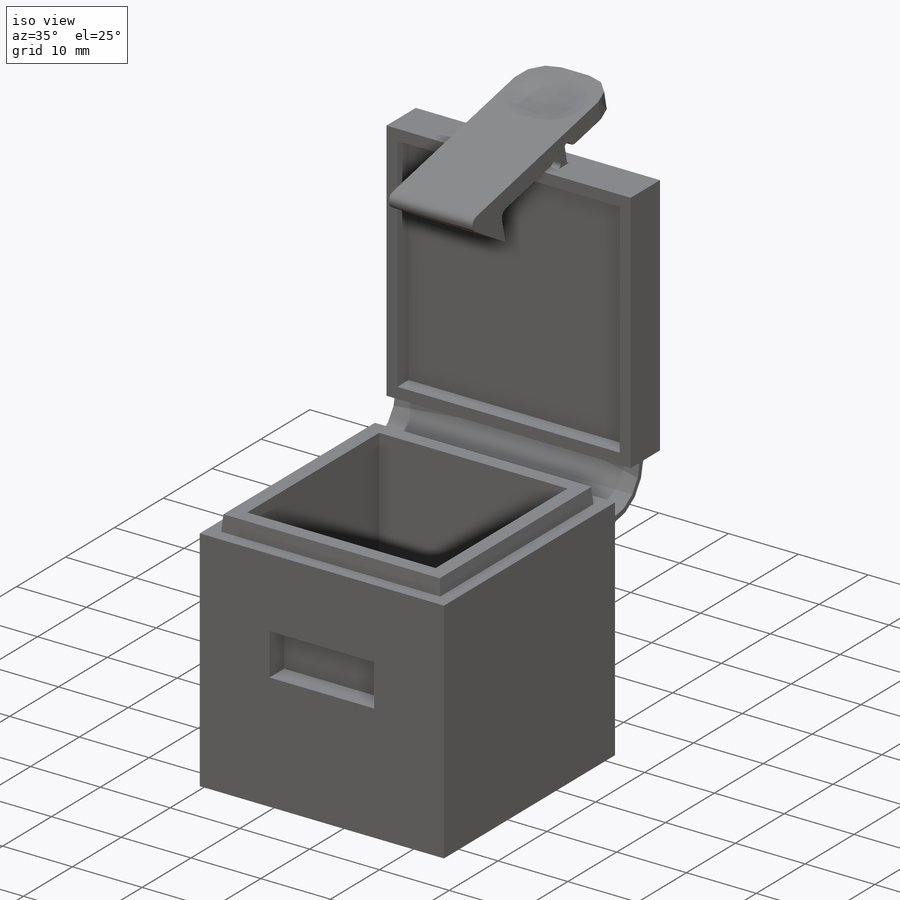
[diagram: iso view]
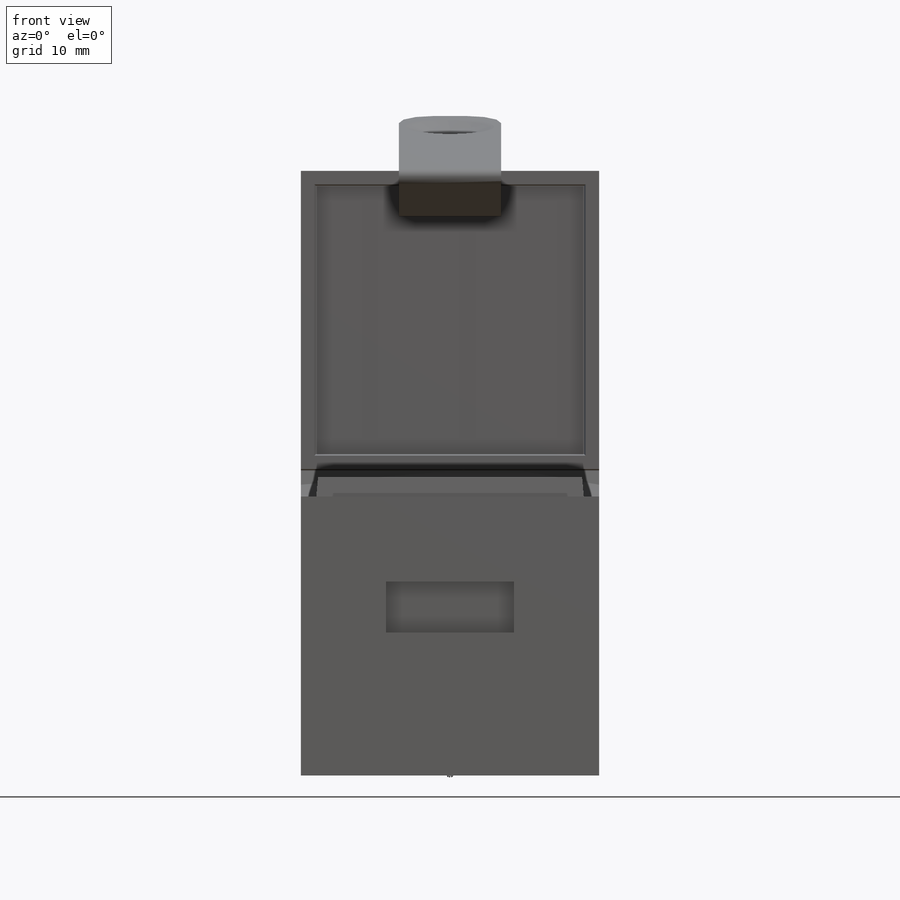
[diagram: front view]
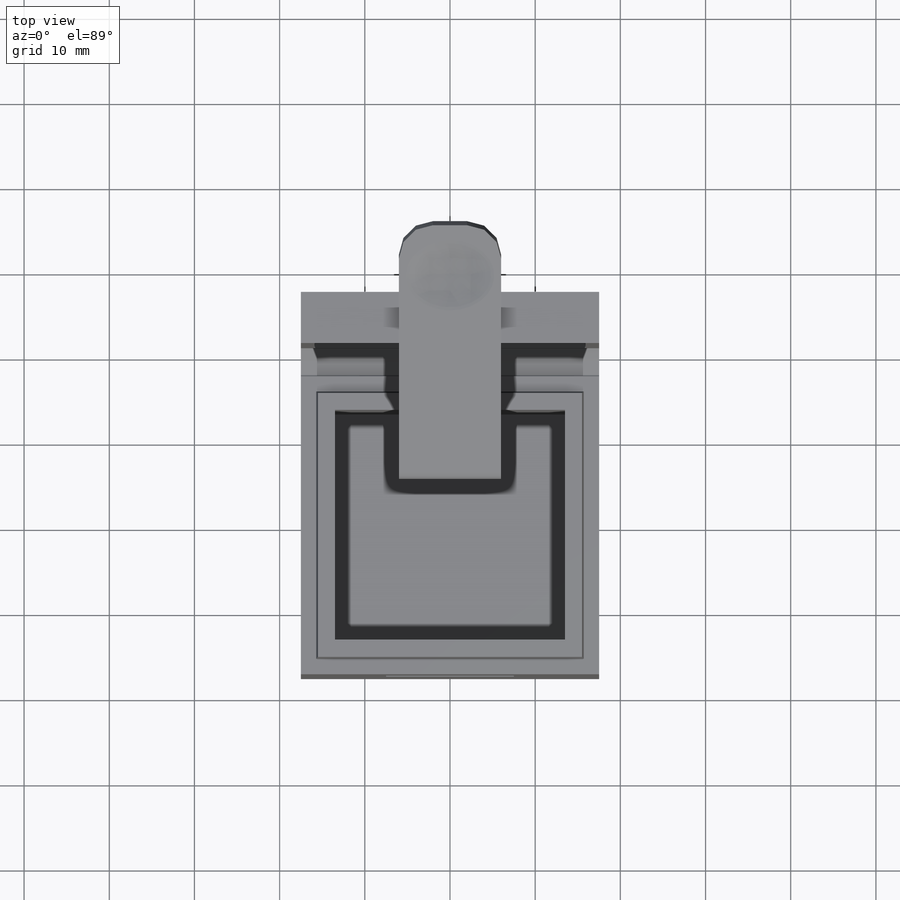
[diagram: top view]
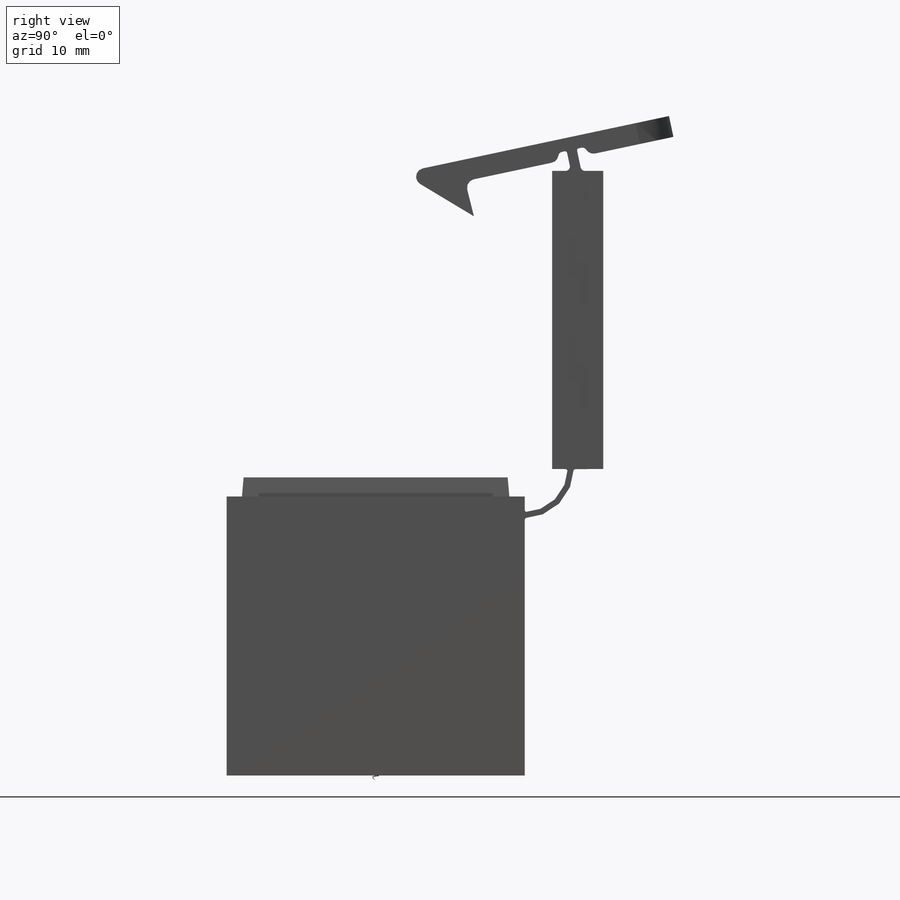
[diagram: right view]
SOLIDWORKS PART (.sldprt)
format: sldprt  version: not decoded by parser v0  size: 1,264,128 bytes
history: native  units: mm
features: sketch x17, extrude x9, fillet x9, move_body x3, shell x2, cut_extrude x2, plane x2, mirror x2, material x1 (+20 scaffold rows collapsed; 7 parser-record rows omitted)
feature tree (74):
  scaffold x20  (default folders/planes/origin — collapsed)
  material  "ABS"
  parser-record x7  (decoder bookkeeping rows leaked as tree rows — omitted from the tree; the rows remain in map.json)
  sketch  "Sketch1"  dims[D1=35.0mm]
  extrude  "Box Body"  Depth=35mm
  shell  "Shell1"  Thickness=4mm
  sketch  "Sketch2"  dims[D1=0.0mm]
  extrude  "Box Lid"  Depth=4mm GrooveHeight=2.25mm GrooveWidth=2mm GrooveDraftAngle=5deg Clearance=0.25mm Gap=0mm upGap=2mm
  shell  "Lip&Groove1-Lip"  Thickness=2mm LipHeight=2mm LipWidth=1.75mm LipDraftAngle=5deg Clearance=0.25mm Gap=0mm upGap=2.25mm
  sketch  "Lid Pivot Sketch"  dims[D1=5.0mm]
  sketch  "Sketch4"  dims[D1=6.0mm D2=15.0mm D3=10.0mm]
  cut_extrude  "Add Catch to Box Body"  Depth=3mm
  sketch  "Sketch5"  dims[c1.D1=0.75mm c1.D2=0.25mm c1.D3=2.0mm c1.D4=~2.217469mm c2.D4=45.0deg c2.D2=2.0mm c3.D2=~0.114368deg c4.D2=~1.672441mm c5.D2=2.0deg c5.D4=0.1mm c5.D3=0.5mm c5.D5=~3.152547mm c6.D5=45.0deg c6.D1=0.25mm]
  extrude  "Latch"  Depth=12mm
  sketch  "Latch Pivot Sketch"  dims[D1=2.5mm D2=1.5mm]
  sketch  "Sketch7"  dims[D1=12.0mm D2=2.5mm D3=3.0mm]
  extrude  "Latch Thumb Press"  Depth=12mm
  sketch  "Latch Body"  dims[D1=6.0mm D2=2.0mm]
  extrude  "Boss-Extrude5"  [1 undecoded]
  move_body  "Test Latch"
  fillet  "Fillet2"  Radius=1mm
  sketch  "Sketch19"  dims[D1=~3.75329mm]
  extrude  "Boss-Extrude7"  [1 undecoded]
  fillet  "Fillet14"  Radius=1mm
  sketch  "Sketch9"  dims[D1=1.2mm]
  extrude  "Latch Hinge"  [1 undecoded]
  sketch  "Sketch10"  dims[D1=1.0mm D2=1.0mm]
  cut_extrude  "Latch Hinge Relief"  [1 undecoded]
  plane  "Plane1"
  mirror  "Mirror Relief"
  fillet  "Fillet4"  Radius=1mm
  fillet  "Fillet5"  Radius=0.25mm
  fillet  "Fillet8"  Radius=4mm
  fillet  "Fillet11"  Radius=0.5mm
  sketch  "Sketch11"  dims[D1=2.0mm D2=8.0mm D3=10.0mm]
  plane  "Plane2"
  sketch  "Sketch12"  dims[D1=2.0mm]
  fillet  "Fillet9"  Radius=1mm
  move_body  "Body-Move/Copy3"
  sketch  "Sketch13"  dims[D1=2.5mm D2=0.7mm]
  extrude  "Lid Live Hinge"  [1 undecoded]
  fillet  "Fillet10"  Radius=0.25mm
  mirror  "DeleteFace2"
  sketch  "Sketch16"
  sketch  "Sketch17"  dims[D1=~1.017893mm]
  move_body  "Body-Move/Copy4"
  sketch  "Sketch18"
  extrude  "Boss-Extrude6"  [1 undecoded]
  fillet  "Fillet13"  Radius=0.5mm
decode coverage: 31 of 44 modeling features carry decoded parameters
note: ~ marks probable driven/reference dimensions
note: 6 parameter values undecoded
summary: no parameter record found for 6 features
note: suppression state not decoded; provenance and decode notes live in map.json
